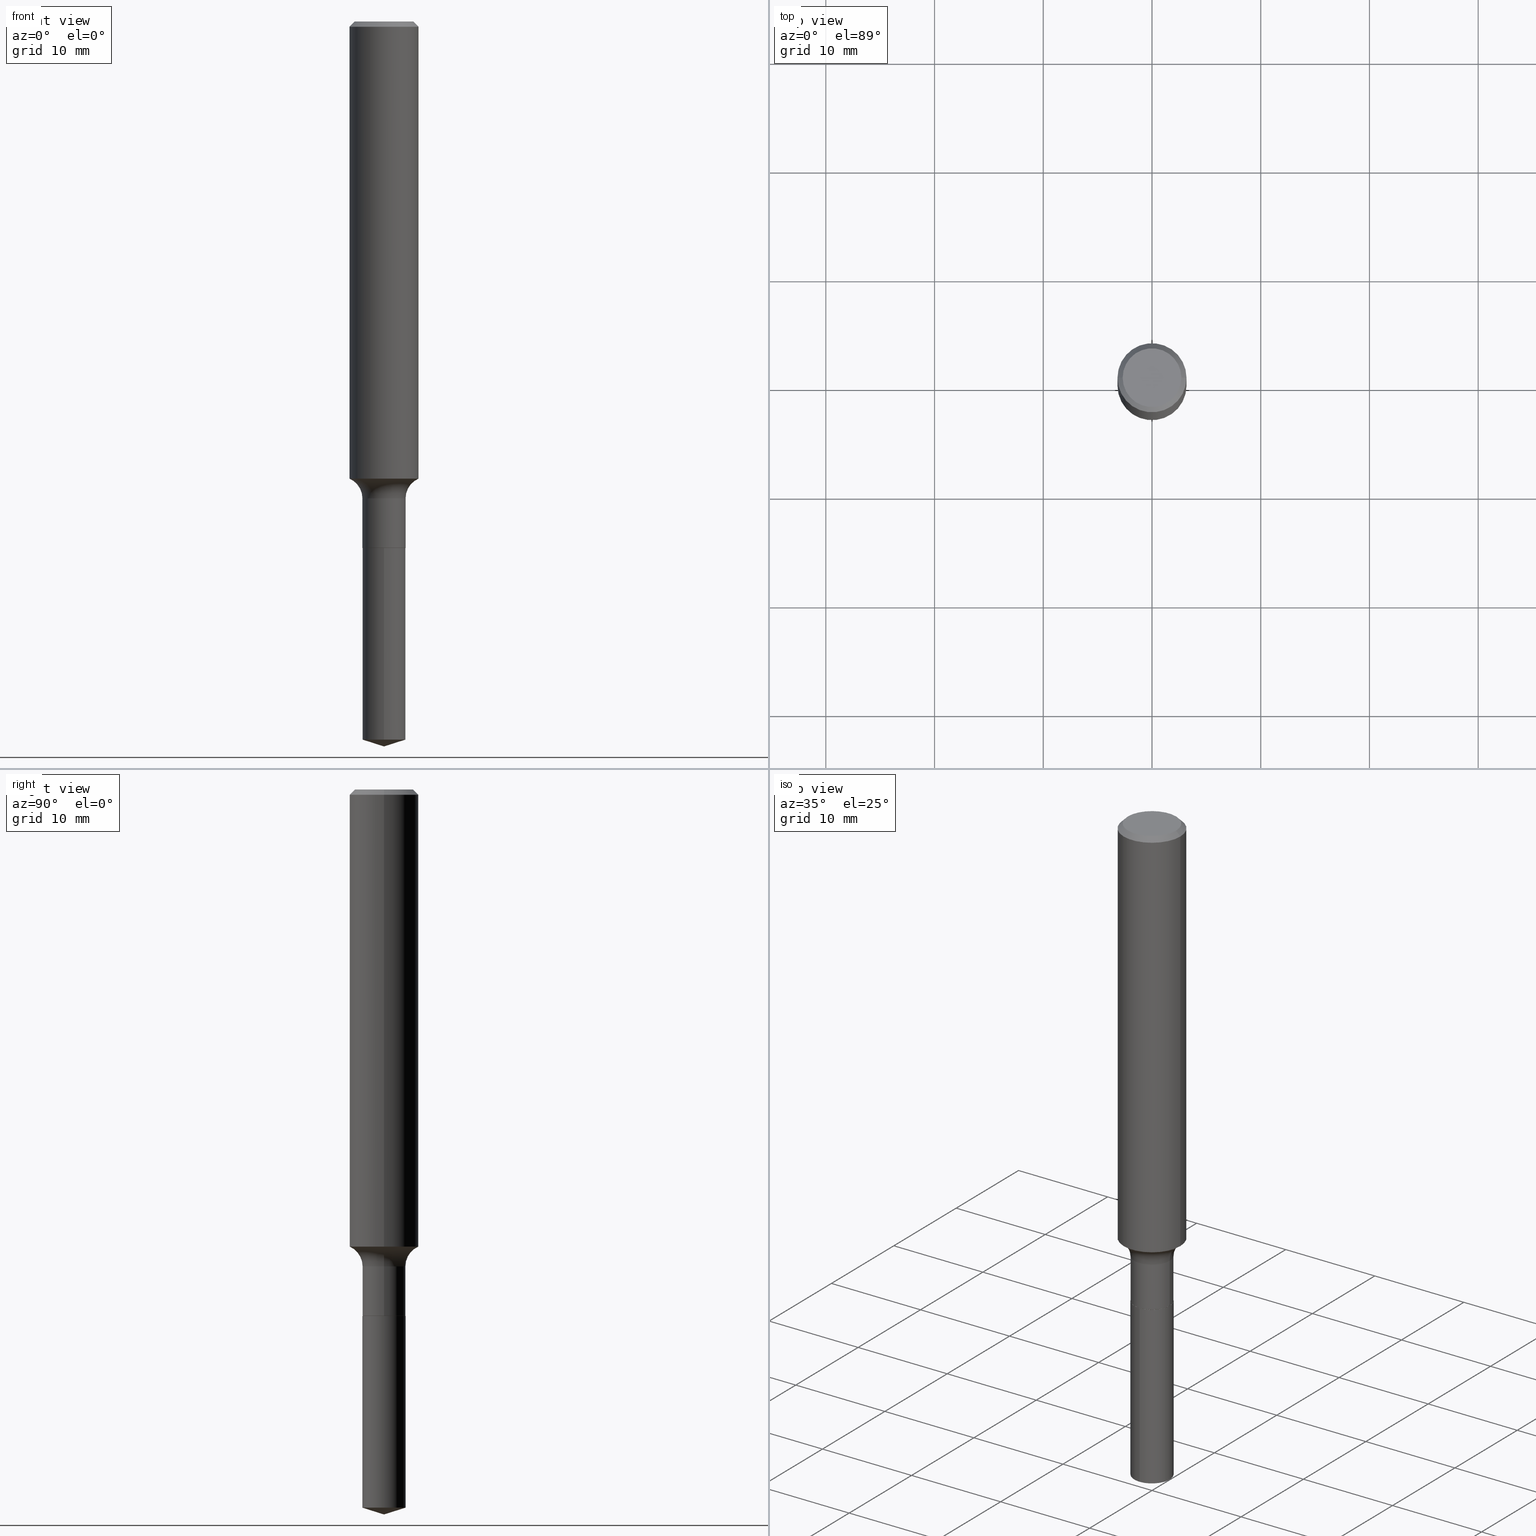
[diagram: canonical four-view strip — front | top / right | iso, engineering-drawing reading convention]
A machine part, canonical four-view strip (front | top / right | iso — engineering-drawing reading convention). The complete STEP part file that produces these views, byte-faithful:
ISO-10303-21;
HEADER;
FILE_DESCRIPTION (( 'STEP AP203' ),
    '1' );
FILE_NAME ('51334.STEP',
    '2024-04-19T12:48:32',
    ( '' ),
    ( '' ),
    'SwSTEP 2.0',
    'SolidWorks 2023',
    '' );
FILE_SCHEMA (( 'CONFIG_CONTROL_DESIGN' ));
ENDSEC;

DATA;
#1 = EDGE_CURVE ( 'NONE', #280, #10, #103, .T. ) ;
#2 = AXIS2_PLACEMENT_3D ( 'NONE', #140, #301, #440 ) ;
#3 = ORIENTED_EDGE ( 'NONE', *, *, #465, .F. ) ;
#4 = ORIENTED_EDGE ( 'NONE', *, *, #383, .T. ) ;
#5 = DIRECTION ( 'NONE',  ( -2.445468806185136877E-29, 3.491481338843145188E-15, 1.000000000000000000 ) ) ;
#6 = PERSON_AND_ORGANIZATION ( #237, #409 ) ;
#7 = ORIENTED_EDGE ( 'NONE', *, *, #157, .F. ) ;
#8 = EDGE_CURVE ( 'NONE', #174, #177, #281, .T. ) ;
#9 = FACE_OUTER_BOUND ( 'NONE', #391, .T. ) ;
#10 = VERTEX_POINT ( 'NONE', #305 ) ;
#11 = DIRECTION ( 'NONE',  ( 1.000000000000000000, -6.982962677686267499E-15, 4.876176775795936353E-29 ) ) ;
#12 = APPROVAL_PERSON_ORGANIZATION ( #260, #126, #385 ) ;
#13 = PERSON_AND_ORGANIZATION ( #237, #409 ) ;
#14 = EDGE_LOOP ( 'NONE', ( #460, #470, #332, #7 ) ) ;
#15 = CARTESIAN_POINT ( 'NONE',  ( 0.1560999999999999333, -7.118432153633400631E-15, -1.726600000000000135 ) ) ;
#16 = ADVANCED_FACE ( 'NONE', ( #137 ), #298, .F. ) ;
#17 = COORDINATED_UNIVERSAL_TIME_OFFSET ( 5, 0, .BEHIND. ) ;
#18 = DIRECTION ( 'NONE',  ( 1.000000000000000000, -6.982962677686266711E-15, 0.000000000000000000 ) ) ;
#19 = ORIENTED_EDGE ( 'NONE', *, *, #490, .F. ) ;
#20 = CARTESIAN_POINT ( 'NONE',  ( 0.07809999999999997500, -5.453693851272973378E-16, 3.808294061896625002E-30 ) ) ;
#21 =( NAMED_UNIT ( * ) PLANE_ANGLE_UNIT ( ) SI_UNIT ( $, .RADIAN. ) );
#22 = EDGE_CURVE ( 'NONE', #351, #444, #228, .T. ) ;
#23 = ORIENTED_EDGE ( 'NONE', *, *, #157, .T. ) ;
#24 = CARTESIAN_POINT ( 'NONE',  ( 4.661552638350107806E-29, -6.655461728102803685E-15, -1.906200000000000117 ) ) ;
#25 = CIRCLE ( 'NONE', #492, 0.1250000000000001943 ) ;
#26 = VERTEX_POINT ( 'NONE', #454 ) ;
#27 = DIRECTION ( 'NONE',  ( -2.445468806185136597E-29, 3.491481338843145583E-15, 1.000000000000000000 ) ) ;
#28 = CARTESIAN_POINT ( 'NONE',  ( 6.359084130436223766E-29, -9.079236141651479808E-15, -2.600375164588550891 ) ) ;
#29 = ADVANCED_FACE ( 'NONE', ( #450 ), #276, .T. ) ;
#30 = DIRECTION ( 'NONE',  ( -6.982962677686266711E-15, -1.000000000000000000, 3.500519750498777402E-15 ) ) ;
#31 = DIRECTION ( 'NONE',  ( 1.000000000000000000, -6.982962677686265922E-15, 4.883557194083112901E-29 ) ) ;
#32 = AXIS2_PLACEMENT_3D ( 'NONE', #476, #144, #225 ) ;
#33 = LINE ( 'NONE', #313, #341 ) ;
#34 = CARTESIAN_POINT ( 'NONE',  ( 6.419158152059804819E-29, -9.165421294402506009E-15, -2.625000000000000000 ) ) ;
#35 = CARTESIAN_POINT ( 'NONE',  ( -1.591006383764329968E-46, 2.271535455632767580E-32, 6.505936120470314915E-18 ) ) ;
#36 = CARTESIAN_POINT ( 'NONE',  ( 6.419447452517559258E-29, -9.165010600977595179E-15, -2.625000000000000000 ) ) ;
#37 = LOCAL_TIME ( 8, 48, 32.00000000000000000, #293 ) ;
#38 = ORIENTED_EDGE ( 'NONE', *, *, #309, .F. ) ;
#39 = VERTEX_POINT ( 'NONE', #267 ) ;
#40 = EDGE_CURVE ( 'NONE', #26, #177, #456, .T. ) ;
#41 = ORIENTED_EDGE ( 'NONE', *, *, #61, .F. ) ;
#42 = EDGE_CURVE ( 'NONE', #220, #174, #33, .T. ) ;
#43 = VECTOR ( 'NONE', #273, 39.37007874015748143 ) ;
#44 = CC_DESIGN_SECURITY_CLASSIFICATION ( #119, ( #277 ) ) ;
#45 = ORIENTED_EDGE ( 'NONE', *, *, #262, .T. ) ;
#46 = CARTESIAN_POINT ( 'NONE',  ( 5.549338766287017680E-16, 0.07809999999999334142, -1.906200000000000339 ) ) ;
#47 = EDGE_CURVE ( 'NONE', #217, #50, #266, .T. ) ;
#48 = CARTESIAN_POINT ( 'NONE',  ( -0.1250000000000003053, -4.890461520389817899E-15, -1.655068258793735314 ) ) ;
#49 = PERSON_AND_ORGANIZATION_ROLE ( 'classification_officer' ) ;
#50 = VERTEX_POINT ( 'NONE', #112 ) ;
#51 = PERSON_AND_ORGANIZATION ( #237, #409 ) ;
#52 = VECTOR ( 'NONE', #101, 39.37007874015748143 ) ;
#53 = EDGE_LOOP ( 'NONE', ( #45, #427 ) ) ;
#54 = AXIS2_PLACEMENT_3D ( 'NONE', #368, #212, #18 ) ;
#55 = DIRECTION ( 'NONE',  ( -1.000000000000000000, 6.982962677686266711E-15, 0.000000000000000000 ) ) ;
#56 = PERSON_AND_ORGANIZATION_ROLE ( 'design_owner' ) ;
#57 = DESIGN_CONTEXT ( 'detailed design', #489, 'design' ) ;
#58 = DIRECTION ( 'NONE',  ( 1.000000000000000000, -6.982962677686266711E-15, 4.876176775795935232E-29 ) ) ;
#59 = ORIENTED_EDGE ( 'NONE', *, *, #61, .T. ) ;
#60 = DIRECTION ( 'NONE',  ( 1.000000000000000000, -6.982962677686266711E-15, 4.876176775795935232E-29 ) ) ;
#61 = EDGE_CURVE ( 'NONE', #280, #444, #362, .T. ) ;
#62 = MECHANICAL_CONTEXT ( 'NONE', #158, 'mechanical' ) ;
#63 = VERTEX_POINT ( 'NONE', #412 ) ;
#64 = CARTESIAN_POINT ( 'NONE',  ( 0.1250000000000001110, -8.728703347107841277E-16, 6.095220969744924646E-30 ) ) ;
#65 = CALENDAR_DATE ( 2024, 19, 4 ) ;
#66 = ADVANCED_FACE ( 'NONE', ( #114 ), #457, .T. ) ;
#67 = ORIENTED_EDGE ( 'NONE', *, *, #189, .T. ) ;
#68 = DIRECTION ( 'NONE',  ( -2.445468806185136597E-29, 3.491481338843145583E-15, 1.000000000000000000 ) ) ;
#69 = AXIS2_PLACEMENT_3D ( 'NONE', #379, #270, #30 ) ;
#70 = AXIS2_PLACEMENT_3D ( 'NONE', #308, #68, #107 ) ;
#71 = LINE ( 'NONE', #339, #43 ) ;
#72 = DIRECTION ( 'NONE',  ( 1.000000000000000000, -6.982962677686267499E-15, 0.000000000000000000 ) ) ;
#73 = DIRECTION ( 'NONE',  ( -2.445468806185136597E-29, 3.491481338843145583E-15, 1.000000000000000000 ) ) ;
#74 = DIRECTION ( 'NONE',  ( 1.000000000000000000, -6.982962677686267499E-15, 0.000000000000000000 ) ) ;
#75 = DIRECTION ( 'NONE',  ( 1.000000000000000000, -6.982962677686260400E-15, 0.000000000000000000 ) ) ;
#76 = DIRECTION ( 'NONE',  ( -1.000000000000000000, 6.982962677686266711E-15, 0.000000000000000000 ) ) ;
#77 = TOROIDAL_SURFACE ( 'NONE', #472, 0.1560999999999999333, 0.07800000000000002764 ) ;
#78 = CIRCLE ( 'NONE', #245, 0.07810000000000000275 ) ;
#79 = CYLINDRICAL_SURFACE ( 'NONE', #100, 0.07809999999999997500 ) ;
#80 = DATE_AND_TIME ( #417, #312 ) ;
#81 = EDGE_CURVE ( 'NONE', #444, #171, #71, .T. ) ;
#82 = CYLINDRICAL_SURFACE ( 'NONE', #149, 0.07810000000000000275 ) ;
#83 = CC_DESIGN_PERSON_AND_ORGANIZATION_ASSIGNMENT ( #443, #304, ( #277 ) ) ;
#84 = VECTOR ( 'NONE', #120, 39.37007874015748143 ) ;
#85 = ORIENTED_EDGE ( 'NONE', *, *, #22, .F. ) ;
#86 = ORIENTED_EDGE ( 'NONE', *, *, #452, .T. ) ;
#87 = ORIENTED_EDGE ( 'NONE', *, *, #425, .F. ) ;
#88 = ADVANCED_FACE ( 'NONE', ( #410 ), #184, .F. ) ;
#89 = DIRECTION ( 'NONE',  ( 7.105427357601001859E-15, 1.000000000000000000, -3.491481338843145583E-15 ) ) ;
#90 = CIRCLE ( 'NONE', #386, 0.1250000000000001943 ) ;
#91 = ORIENTED_EDGE ( 'NONE', *, *, #490, .T. ) ;
#92 = DIRECTION ( 'NONE',  ( -6.982962677686265133E-15, -1.000000000000000000, 3.497884755011860410E-15 ) ) ;
#93 = CC_DESIGN_PERSON_AND_ORGANIZATION_ASSIGNMENT ( #94, #49, ( #119 ) ) ;
#94 = PERSON_AND_ORGANIZATION ( #237, #409 ) ;
#95 = ORIENTED_EDGE ( 'NONE', *, *, #482, .F. ) ;
#96 = CARTESIAN_POINT ( 'NONE',  ( 4.660329903947015004E-29, -6.653715987433382970E-15, -1.905700000000000172 ) ) ;
#97 = ORIENTED_EDGE ( 'NONE', *, *, #475, .F. ) ;
#98 = DIRECTION ( 'NONE',  ( 2.438088387897960049E-29, -3.491481338843145188E-15, -1.000000000000000000 ) ) ;
#99 = CARTESIAN_POINT ( 'NONE',  ( 0.000000000000000000, 0.000000000000000000, 0.000000000000000000 ) ) ;
#100 = AXIS2_PLACEMENT_3D ( 'NONE', #411, #73, #234 ) ;
#101 = DIRECTION ( 'NONE',  ( -6.659769872151619467E-15, -0.9537169507482249342, 0.3007057995042795584 ) ) ;
#102 = DATE_TIME_ROLE ( 'creation_date' ) ;
#103 = LINE ( 'NONE', #467, #287 ) ;
#104 = CARTESIAN_POINT ( 'NONE',  ( -1.591006383764329968E-46, 2.271535455632767580E-32, 6.505936120470314915E-18 ) ) ;
#105 = VERTEX_POINT ( 'NONE', #150 ) ;
#106 = DIRECTION ( 'NONE',  ( -6.982962677686265133E-15, -1.000000000000000000, 3.497884755011860410E-15 ) ) ;
#107 = DIRECTION ( 'NONE',  ( 1.000000000000000000, -6.982962677686269077E-15, 0.000000000000000000 ) ) ;
#108 = LINE ( 'NONE', #223, #195 ) ;
#109 = CIRCLE ( 'NONE', #185, 0.1250000000000000000 ) ;
#110 = TOROIDAL_SURFACE ( 'NONE', #464, 0.1560999999999999333, 0.07800000000000002764 ) ;
#111 = DATE_AND_TIME ( #479, #458 ) ;
#112 = CARTESIAN_POINT ( 'NONE',  ( -0.07809999999999997500, -5.786119956911341584E-15, -1.726600000000000135 ) ) ;
#113 = LINE ( 'NONE', #187, #481 ) ;
#114 = FACE_OUTER_BOUND ( 'NONE', #365, .T. ) ;
#115 = CARTESIAN_POINT ( 'NONE',  ( -0.1250000000000000000, 8.074050596074738982E-16, -0.01875000000000013461 ) ) ;
#116 = CARTESIAN_POINT ( 'NONE',  ( 4.661552638350107806E-29, -6.655461728102803685E-15, -1.906200000000000117 ) ) ;
#117 = ADVANCED_FACE ( 'NONE', ( #415 ), #79, .T. ) ;
#118 = AXIS2_PLACEMENT_3D ( 'NONE', #96, #324, #251 ) ;
#119 = SECURITY_CLASSIFICATION ( '', '', #170 ) ;
#120 = DIRECTION ( 'NONE',  ( 0.7071067811865450192, -7.319954787623246579E-15, -0.7071067811865500152 ) ) ;
#121 = EDGE_LOOP ( 'NONE', ( #59, #372, #19, #294 ) ) ;
#122 = ORIENTED_EDGE ( 'NONE', *, *, #47, .T. ) ;
#123 = AXIS2_PLACEMENT_3D ( 'NONE', #24, #180, #265 ) ;
#124 = CC_DESIGN_DATE_AND_TIME_ASSIGNMENT ( #335, #102, ( #317 ) ) ;
#125 = ORIENTED_EDGE ( 'NONE', *, *, #387, .F. ) ;
#126 = APPROVAL ( #363, 'UNSPECIFIED' ) ;
#127 = PRODUCT_DEFINITION_SHAPE ( 'NONE', 'NONE',  #317 ) ;
#128 = PERSON_AND_ORGANIZATION ( #237, #409 ) ;
#129 = CONICAL_SURFACE ( 'NONE', #375, 0.1250000000000000000, 0.7853981633974447263 ) ;
#130 = ADVANCED_BREP_SHAPE_REPRESENTATION ( '51334', ( #355, #198, #400 ), #342 ) ;
#131 = VECTOR ( 'NONE', #373, 39.37007874015748143 ) ;
#132 = ORIENTED_EDGE ( 'NONE', *, *, #200, .F. ) ;
#133 = DIRECTION ( 'NONE',  ( -2.445393581737068689E-29, 3.491589064534288642E-15, 1.000000000000000000 ) ) ;
#134 = ADVANCED_FACE ( 'NONE', ( #343 ), #347, .T. ) ;
#135 = CARTESIAN_POINT ( 'NONE',  ( -0.1250000000000000000, -2.033874187896500512E-15, -0.01875000000000013461 ) ) ;
#136 = EDGE_CURVE ( 'NONE', #26, #258, #207, .T. ) ;
#137 = FACE_OUTER_BOUND ( 'NONE', #213, .T. ) ;
#138 = FACE_OUTER_BOUND ( 'NONE', #327, .T. ) ;
#139 = VECTOR ( 'NONE', #346, 39.37007874015748854 ) ;
#140 = CARTESIAN_POINT ( 'NONE',  ( 4.661552638350107806E-29, -6.655461728102803685E-15, -1.906200000000000117 ) ) ;
#141 = FACE_OUTER_BOUND ( 'NONE', #14, .T. ) ;
#142 = APPLICATION_PROTOCOL_DEFINITION ( 'international standard', 'config_control_design', 1994, #489 ) ;
#143 = EDGE_LOOP ( 'NONE', ( #85, #196, #97 ) ) ;
#144 = DIRECTION ( 'NONE',  ( -2.445468806185136597E-29, 3.491481338843145583E-15, 1.000000000000000000 ) ) ;
#145 = ADVANCED_FACE ( 'NONE', ( #154 ), #82, .T. ) ;
#146 = CARTESIAN_POINT ( 'NONE',  ( 0.07760000000000000231, -7.197339631891257326E-15, -1.906200000000000117 ) ) ;
#147 = PRODUCT_RELATED_PRODUCT_CATEGORY ( 'detail', '', ( #160 ) ) ;
#148 = DIRECTION ( 'NONE',  ( -2.445393581737068689E-29, 3.491589064534288642E-15, 1.000000000000000000 ) ) ;
#149 = AXIS2_PLACEMENT_3D ( 'NONE', #477, #148, #333 ) ;
#150 = CARTESIAN_POINT ( 'NONE',  ( 0.07810000000000000275, -7.199085372560681196E-15, -1.905700000000000172 ) ) ;
#151 = EDGE_CURVE ( 'NONE', #337, #39, #255, .T. ) ;
#152 = DIRECTION ( 'NONE',  ( -2.445468806185136877E-29, 3.491481338843145188E-15, 1.000000000000000000 ) ) ;
#153 = DIRECTION ( 'NONE',  ( 2.445468806185136597E-29, -3.491481338843145583E-15, -1.000000000000000000 ) ) ;
#154 = FACE_OUTER_BOUND ( 'NONE', #121, .T. ) ;
#155 = AXIS2_PLACEMENT_3D ( 'NONE', #381, #315, #75 ) ;
#156 = CIRCLE ( 'NONE', #282, 0.07800000000000002764 ) ;
#157 = EDGE_CURVE ( 'NONE', #105, #217, #243, .T. ) ;
#158 = APPLICATION_CONTEXT ( 'configuration controlled 3d designs of mechanical parts and assemblies' ) ;
#159 = ORIENTED_EDGE ( 'NONE', *, *, #331, .T. ) ;
#160 = PRODUCT ( '51334', '51334', '', ( #62 ) ) ;
#161 = AXIS2_PLACEMENT_3D ( 'NONE', #28, #307, #418 ) ;
#162 = CIRCLE ( 'NONE', #123, 0.07810000000000000275 ) ;
#163 = ORIENTED_EDGE ( 'NONE', *, *, #302, .F. ) ;
#164 = ADVANCED_FACE ( 'NONE', ( #141 ), #203, .T. ) ;
#165 = LINE ( 'NONE', #466, #52 ) ;
#166 = CLOSED_SHELL ( 'NONE', ( #145, #66, #134, #169, #16 ) ) ;
#167 = CC_DESIGN_APPROVAL ( #126, ( #119 ) ) ;
#168 = DIRECTION ( 'NONE',  ( -2.445468806185136597E-29, 3.491481338843145583E-15, 1.000000000000000000 ) ) ;
#169 = ADVANCED_FACE ( 'NONE', ( #206 ), #286, .T. ) ;
#170 = SECURITY_CLASSIFICATION_LEVEL ( 'unclassified' ) ;
#171 = VERTEX_POINT ( 'NONE', #46 ) ;
#172 = CARTESIAN_POINT ( 'NONE',  ( 0.1250000000000000000, -9.383356098140928781E-16, -0.01875000000000013461 ) ) ;
#173 = DATE_AND_TIME ( #65, #389 ) ;
#174 = VERTEX_POINT ( 'NONE', #135 ) ;
#175 = APPLICATION_PROTOCOL_DEFINITION ( 'international standard', 'config_control_design', 1994, #158 ) ;
#176 = EDGE_CURVE ( 'NONE', #351, #280, #165, .T. ) ;
#177 = VERTEX_POINT ( 'NONE', #172 ) ;
#178 = CIRCLE ( 'NONE', #238, 0.1062499999999999972 ) ;
#179 = CARTESIAN_POINT ( 'NONE',  ( 6.359084130436223766E-29, -9.079236141651479808E-15, -2.600375164588550891 ) ) ;
#180 = DIRECTION ( 'NONE',  ( -2.445393581737068689E-29, 3.491589064534288642E-15, 1.000000000000000000 ) ) ;
#181 = ORIENTED_EDGE ( 'NONE', *, *, #151, .T. ) ;
#182 =( LENGTH_UNIT ( ) NAMED_UNIT ( * ) SI_UNIT ( $, .METRE. ) );
#183 = DIRECTION ( 'NONE',  ( -2.445393581737068689E-29, 3.491589064534288642E-15, 1.000000000000000000 ) ) ;
#184 = PLANE ( 'NONE',  #310 ) ;
#185 = AXIS2_PLACEMENT_3D ( 'NONE', #435, #428, #441 ) ;
#186 = DIRECTION ( 'NONE',  ( -2.445393581737068689E-29, 3.491589064534288642E-15, 1.000000000000000000 ) ) ;
#187 = CARTESIAN_POINT ( 'NONE',  ( -0.07760000000000000231, -6.104080565152965924E-15, -1.906200000000000117 ) ) ;
#188 = CC_DESIGN_APPROVAL ( #354, ( #317 ) ) ;
#189 = EDGE_CURVE ( 'NONE', #39, #337, #244, .T. ) ;
#190 = DIRECTION ( 'NONE',  ( -2.445468806185136597E-29, 3.491481338843145583E-15, 1.000000000000000000 ) ) ;
#191 = CARTESIAN_POINT ( 'NONE',  ( 4.047417798987228218E-29, -5.778639940089945498E-15, -1.655068258793735314 ) ) ;
#192 = DIRECTION ( 'NONE',  ( -2.445393581737068689E-29, 3.491589064534288642E-15, 1.000000000000000000 ) ) ;
#193 = ADVANCED_FACE ( 'NONE', ( #403 ), #393, .T. ) ;
#194 = AXIS2_PLACEMENT_3D ( 'NONE', #15, #468, #299 ) ;
#195 = VECTOR ( 'NONE', #274, 39.37007874015748143 ) ;
#196 = ORIENTED_EDGE ( 'NONE', *, *, #176, .T. ) ;
#197 = EDGE_LOOP ( 'NONE', ( #181, #376, #3, #95 ) ) ;
#198 = MANIFOLD_SOLID_BREP ( 'Body-Move/Copy2[2]', #420 ) ;
#199 = CONICAL_SURFACE ( 'NONE', #268, 0.1250000000000000000, 0.7853981633974447263 ) ;
#200 = EDGE_CURVE ( 'NONE', #177, #174, #109, .T. ) ;
#201 = ORIENTED_EDGE ( 'NONE', *, *, #176, .F. ) ;
#202 = EDGE_LOOP ( 'NONE', ( #215, #388, #132, #163 ) ) ;
#203 = CYLINDRICAL_SURFACE ( 'NONE', #316, 0.07809999999999997500 ) ;
#204 = ORIENTED_EDGE ( 'NONE', *, *, #249, .T. ) ;
#205 = ADVANCED_FACE ( 'NONE', ( #248 ), #214, .F. ) ;
#206 = FACE_OUTER_BOUND ( 'NONE', #434, .T. ) ;
#207 = CIRCLE ( 'NONE', #219, 0.1062499999999999972 ) ;
#208 = PERSON_AND_ORGANIZATION_ROLE ( 'creator' ) ;
#209 = VECTOR ( 'NONE', #478, 39.37007874015748143 ) ;
#210 = EDGE_LOOP ( 'NONE', ( #318, #279 ) ) ;
#211 = APPROVAL_STATUS ( 'not_yet_approved' ) ;
#212 = DIRECTION ( 'NONE',  ( -2.445468806185136597E-29, 3.491481338843145583E-15, 1.000000000000000000 ) ) ;
#213 = EDGE_LOOP ( 'NONE', ( #91, #264 ) ) ;
#214 = PLANE ( 'NONE',  #229 ) ;
#215 = ORIENTED_EDGE ( 'NONE', *, *, #425, .T. ) ;
#216 = DIRECTION ( 'NONE',  ( -6.982962677686265133E-15, -1.000000000000000000, 0.000000000000000000 ) ) ;
#217 = VERTEX_POINT ( 'NONE', #254 ) ;
#218 = APPROVAL_STATUS ( 'not_yet_approved' ) ;
#219 = AXIS2_PLACEMENT_3D ( 'NONE', #35, #226, #488 ) ;
#220 = VERTEX_POINT ( 'NONE', #48 ) ;
#221 = AXIS2_PLACEMENT_3D ( 'NONE', #401, #257, #58 ) ;
#222 = LINE ( 'NONE', #483, #131 ) ;
#223 = CARTESIAN_POINT ( 'NONE',  ( -0.07809999999999997500, 5.549338766286380675E-16, -3.841688305489080574E-30 ) ) ;
#224 = DIRECTION ( 'NONE',  ( -6.982962677686266711E-15, -1.000000000000000000, 3.500519750498777402E-15 ) ) ;
#225 = DIRECTION ( 'NONE',  ( 1.000000000000000000, -6.982962677686260400E-15, 0.000000000000000000 ) ) ;
#226 = DIRECTION ( 'NONE',  ( -2.445468806185136597E-29, 3.491481338843145583E-15, 1.000000000000000000 ) ) ;
#227 = ADVANCED_FACE ( 'NONE', ( #9 ), #77, .F. ) ;
#228 = LINE ( 'NONE', #36, #139 ) ;
#229 = AXIS2_PLACEMENT_3D ( 'NONE', #395, #98, #358 ) ;
#230 = DIRECTION ( 'NONE',  ( -2.445468806185136597E-29, 3.491481338843145583E-15, 1.000000000000000000 ) ) ;
#231 = CIRCLE ( 'NONE', #70, 0.07809999999999997500 ) ;
#232 = EDGE_CURVE ( 'NONE', #63, #105, #334, .T. ) ;
#233 = COORDINATED_UNIVERSAL_TIME_OFFSET ( 5, 0, .BEHIND. ) ;
#234 = DIRECTION ( 'NONE',  ( 1.000000000000000000, -6.982962677686267499E-15, 4.876176775795936353E-29 ) ) ;
#235 = APPROVAL_DATE_TIME ( #80, #126 ) ;
#236 = ADVANCED_FACE ( 'NONE', ( #138 ), #129, .T. ) ;
#237 = PERSON ( 'UNSPECIFIED', 'UNSPECIFIED', 'UNSPECIFIED', ('UNSPECIFIED'), ('UNSPECIFIED'), ('UNSPECIFIED') ) ;
#238 = AXIS2_PLACEMENT_3D ( 'NONE', #104, #230, #380 ) ;
#239 = EDGE_LOOP ( 'NONE', ( #125, #430, #23, #422 ) ) ;
#240 = ORIENTED_EDGE ( 'NONE', *, *, #1, .T. ) ;
#241 = EDGE_CURVE ( 'NONE', #423, #217, #408, .T. ) ;
#242 = EDGE_LOOP ( 'NONE', ( #406, #323, #285, #419 ) ) ;
#243 = LINE ( 'NONE', #20, #325 ) ;
#244 = CIRCLE ( 'NONE', #300, 0.07760000000000000231 ) ;
#245 = AXIS2_PLACEMENT_3D ( 'NONE', #445, #183, #106 ) ;
#246 = FACE_OUTER_BOUND ( 'NONE', #462, .T. ) ;
#247 = ORIENTED_EDGE ( 'NONE', *, *, #433, .F. ) ;
#248 = FACE_OUTER_BOUND ( 'NONE', #53, .T. ) ;
#249 = EDGE_CURVE ( 'NONE', #220, #423, #90, .T. ) ;
#250 = ORIENTED_EDGE ( 'NONE', *, *, #452, .F. ) ;
#251 = DIRECTION ( 'NONE',  ( 1.000000000000000000, -6.982962677686266711E-15, 0.000000000000000000 ) ) ;
#252 = DIRECTION ( 'NONE',  ( 0.000000000000000000, 0.000000000000000000, 1.000000000000000000 ) ) ;
#253 = ORIENTED_EDGE ( 'NONE', *, *, #262, .F. ) ;
#254 = CARTESIAN_POINT ( 'NONE',  ( 0.07809999999999997500, -6.573761064773872585E-15, -1.726600000000000135 ) ) ;
#255 = CIRCLE ( 'NONE', #480, 0.07760000000000000231 ) ;
#256 = UNCERTAINTY_MEASURE_WITH_UNIT (LENGTH_MEASURE( 1.000000000000000082E-05 ), #330, 'distance_accuracy_value', 'NONE');
#257 = DIRECTION ( 'NONE',  ( -2.445468806185136597E-29, 3.491481338843145583E-15, 1.000000000000000000 ) ) ;
#258 = VERTEX_POINT ( 'NONE', #271 ) ;
#259 = DIRECTION ( 'NONE',  ( 1.000000000000000000, -6.982962677686260400E-15, 0.000000000000000000 ) ) ;
#260 = PERSON_AND_ORGANIZATION ( #237, #409 ) ;
#261 = EDGE_LOOP ( 'NONE', ( #284, #86, #4, #291 ) ) ;
#262 = EDGE_CURVE ( 'NONE', #258, #26, #178, .T. ) ;
#263 = CALENDAR_DATE ( 2024, 19, 4 ) ;
#264 = ORIENTED_EDGE ( 'NONE', *, *, #433, .T. ) ;
#265 = DIRECTION ( 'NONE',  ( -6.982962677686265133E-15, -1.000000000000000000, 3.497884755011860410E-15 ) ) ;
#266 = CIRCLE ( 'NONE', #361, 0.07809999999999997500 ) ;
#267 = CARTESIAN_POINT ( 'NONE',  ( -0.07760000000000000231, -6.101431337978854723E-15, -1.906200000000000117 ) ) ;
#268 = AXIS2_PLACEMENT_3D ( 'NONE', #413, #153, #76 ) ;
#269 = FACE_OUTER_BOUND ( 'NONE', #242, .T. ) ;
#270 = DIRECTION ( 'NONE',  ( -2.445393581737068689E-29, 3.491589064534288642E-15, 1.000000000000000000 ) ) ;
#271 = CARTESIAN_POINT ( 'NONE',  ( -0.1062499999999999972, 7.746724220558198188E-16, 6.505936120465012444E-18 ) ) ;
#272 = DATE_TIME_ROLE ( 'classification_date' ) ;
#273 = DIRECTION ( 'NONE',  ( -2.445393581737068689E-29, 3.491589064534288248E-15, 1.000000000000000000 ) ) ;
#274 = DIRECTION ( 'NONE',  ( -2.445468806185136877E-29, 3.491481338843145188E-15, 1.000000000000000000 ) ) ;
#275 = DIRECTION ( 'NONE',  ( 1.000000000000000000, -6.982962677686265922E-15, 4.876176775795935793E-29 ) ) ;
#276 = CONICAL_SURFACE ( 'NONE', #155, 0.07760000000000000231, 0.7853981633975507526 ) ;
#277 = PRODUCT_DEFINITION_FORMATION_WITH_SPECIFIED_SOURCE ( 'ANY', '', #160, .NOT_KNOWN. ) ;
#278 = DIRECTION ( 'NONE',  ( -2.438088387897960049E-29, 3.491481338843145188E-15, 1.000000000000000000 ) ) ;
#279 = ORIENTED_EDGE ( 'NONE', *, *, #189, .F. ) ;
#280 = VERTEX_POINT ( 'NONE', #451 ) ;
#281 = CIRCLE ( 'NONE', #392, 0.1250000000000000000 ) ;
#282 = AXIS2_PLACEMENT_3D ( 'NONE', #378, #89, #297 ) ;
#283 = ADVANCED_FACE ( 'NONE', ( #306 ), #110, .F. ) ;
#284 = ORIENTED_EDGE ( 'NONE', *, *, #249, .F. ) ;
#285 = ORIENTED_EDGE ( 'NONE', *, *, #200, .T. ) ;
#286 = CYLINDRICAL_SURFACE ( 'NONE', #437, 0.07810000000000000275 ) ;
#287 = VECTOR ( 'NONE', #474, 39.37007874015748143 ) ;
#288 = CIRCLE ( 'NONE', #54, 0.07810000000000000275 ) ;
#289 = COORDINATED_UNIVERSAL_TIME_OFFSET ( 5, 0, .BEHIND. ) ;
#290 = CYLINDRICAL_SURFACE ( 'NONE', #221, 0.1250000000000001110 ) ;
#291 = ORIENTED_EDGE ( 'NONE', *, *, #241, .F. ) ;
#292 = DIRECTION ( 'NONE',  ( -2.445468806185136597E-29, 3.491481338843145583E-15, 1.000000000000000000 ) ) ;
#293 = COORDINATED_UNIVERSAL_TIME_OFFSET ( 5, 0, .BEHIND. ) ;
#294 = ORIENTED_EDGE ( 'NONE', *, *, #1, .F. ) ;
#295 = CARTESIAN_POINT ( 'NONE',  ( 4.661552638350107806E-29, -6.655461728102803685E-15, -1.906200000000000117 ) ) ;
#296 = APPROVAL_DATE_TIME ( #173, #485 ) ;
#297 = DIRECTION ( 'NONE',  ( -1.000000000000000000, 7.105427357601001859E-15, 0.000000000000000000 ) ) ;
#298 = PLANE ( 'NONE',  #2 ) ;
#299 = DIRECTION ( 'NONE',  ( 1.000000000000000000, -6.982962677686268288E-15, 0.000000000000000000 ) ) ;
#300 = AXIS2_PLACEMENT_3D ( 'NONE', #295, #471, #259 ) ;
#301 = DIRECTION ( 'NONE',  ( 2.445393581737068689E-29, -3.491589064534288248E-15, -1.000000000000000000 ) ) ;
#302 = EDGE_CURVE ( 'NONE', #423, #177, #340, .T. ) ;
#303 = DIRECTION ( 'NONE',  ( -2.445468806185136597E-29, 3.491481338843145583E-15, 1.000000000000000000 ) ) ;
#304 = PERSON_AND_ORGANIZATION_ROLE ( 'creator' ) ;
#305 = CARTESIAN_POINT ( 'NONE',  ( -5.453693851272506964E-16, -0.07810000000000665021, -1.906199999999999672 ) ) ;
#306 = FACE_OUTER_BOUND ( 'NONE', #261, .T. ) ;
#307 = DIRECTION ( 'NONE',  ( -2.445393581737068689E-29, 3.491589064534288642E-15, 1.000000000000000000 ) ) ;
#308 = CARTESIAN_POINT ( 'NONE',  ( 4.222346440759256809E-29, -6.028391679646575149E-15, -1.726600000000000135 ) ) ;
#309 = EDGE_CURVE ( 'NONE', #39, #63, #113, .T. ) ;
#310 = AXIS2_PLACEMENT_3D ( 'NONE', #116, #278, #275 ) ;
#311 = CARTESIAN_POINT ( 'NONE',  ( 4.222346440759256809E-29, -6.028391679646575149E-15, -1.726600000000000135 ) ) ;
#312 = LOCAL_TIME ( 8, 48, 32.00000000000000000, #491 ) ;
#313 = CARTESIAN_POINT ( 'NONE',  ( -0.1250000000000001110, 8.881784197001260212E-16, -6.148668862818637832E-30 ) ) ;
#314 = CARTESIAN_POINT ( 'NONE',  ( 4.222346440759256809E-29, -6.028391679646575149E-15, -1.726600000000000135 ) ) ;
#315 = DIRECTION ( 'NONE',  ( -2.445468806185136597E-29, 3.491481338843145583E-15, 1.000000000000000000 ) ) ;
#316 = AXIS2_PLACEMENT_3D ( 'NONE', #461, #370, #11 ) ;
#317 = PRODUCT_DEFINITION ( 'UNKNOWN', '', #277, #57 ) ;
#318 = ORIENTED_EDGE ( 'NONE', *, *, #151, .F. ) ;
#319 = ORIENTED_EDGE ( 'NONE', *, *, #232, .F. ) ;
#320 = CC_DESIGN_PERSON_AND_ORGANIZATION_ASSIGNMENT ( #51, #208, ( #317 ) ) ;
#321 = DIRECTION ( 'NONE',  ( -2.445468806185136597E-29, 3.491481338843145583E-15, 1.000000000000000000 ) ) ;
#322 = APPROVAL_ROLE ( '' ) ;
#323 = ORIENTED_EDGE ( 'NONE', *, *, #40, .T. ) ;
#324 = DIRECTION ( 'NONE',  ( -2.445468806185136597E-29, 3.491481338843145583E-15, 1.000000000000000000 ) ) ;
#325 = VECTOR ( 'NONE', #5, 39.37007874015748143 ) ;
#326 = LOCAL_TIME ( 8, 48, 32.00000000000000000, #17 ) ;
#327 = EDGE_LOOP ( 'NONE', ( #436, #253, #159, #349 ) ) ;
#328 = CARTESIAN_POINT ( 'NONE',  ( 4.661552638350107806E-29, -6.655461728102803685E-15, -1.906200000000000117 ) ) ;
#329 = DIRECTION ( 'NONE',  ( 2.445468806185136597E-29, -3.491481338843145583E-15, -1.000000000000000000 ) ) ;
#330 =( CONVERSION_BASED_UNIT ( 'INCH', #350 ) LENGTH_UNIT ( ) NAMED_UNIT ( #426 ) );
#331 = EDGE_CURVE ( 'NONE', #258, #174, #453, .T. ) ;
#332 = ORIENTED_EDGE ( 'NONE', *, *, #47, .F. ) ;
#333 = DIRECTION ( 'NONE',  ( -6.982962677686265133E-15, -1.000000000000000000, 3.497884755011860410E-15 ) ) ;
#334 = CIRCLE ( 'NONE', #118, 0.07810000000000000275 ) ;
#335 = DATE_AND_TIME ( #263, #326 ) ;
#336 = CC_DESIGN_DATE_AND_TIME_ASSIGNMENT ( #111, #272, ( #119 ) ) ;
#337 = VERTEX_POINT ( 'NONE', #146 ) ;
#338 = CARTESIAN_POINT ( 'NONE',  ( 5.549338766287017680E-16, 0.07809999999999091280, -2.600375164588551780 ) ) ;
#339 = CARTESIAN_POINT ( 'NONE',  ( 5.549338766286847089E-16, 0.07809999999999334142, -1.906200000000000339 ) ) ;
#340 = LINE ( 'NONE', #64, #209 ) ;
#341 = VECTOR ( 'NONE', #152, 39.37007874015748143 ) ;
#342 =( GEOMETRIC_REPRESENTATION_CONTEXT ( 3 ) GLOBAL_UNCERTAINTY_ASSIGNED_CONTEXT ( ( #256 ) ) GLOBAL_UNIT_ASSIGNED_CONTEXT ( ( #330, #21, #429 ) ) REPRESENTATION_CONTEXT ( 'NONE', 'WORKASPACE' ) );
#343 = FACE_OUTER_BOUND ( 'NONE', #143, .T. ) ;
#344 = DIRECTION ( 'NONE',  ( 1.000000000000000000, -6.982962677686269077E-15, 0.000000000000000000 ) ) ;
#345 = DIRECTION ( 'NONE',  ( -0.7071067811865450192, 2.468850131082230634E-15, -0.7071067811865500152 ) ) ;
#346 = DIRECTION ( 'NONE',  ( 6.776566513254244727E-15, 0.9537169507482269326, 0.3007057995042728971 ) ) ;
#347 = CONICAL_SURFACE ( 'NONE', #352, 124.8659371009124612, 1.265363707695885687 ) ;
#348 = AXIS2_PLACEMENT_3D ( 'NONE', #179, #186, #216 ) ;
#349 = ORIENTED_EDGE ( 'NONE', *, *, #8, .T. ) ;
#350 = LENGTH_MEASURE_WITH_UNIT ( LENGTH_MEASURE( 0.02539999999999999897 ), #182 );
#351 = VERTEX_POINT ( 'NONE', #34 ) ;
#352 = AXIS2_PLACEMENT_3D ( 'NONE', #384, #192, #224 ) ;
#353 = APPROVAL_PERSON_ORGANIZATION ( #13, #485, #322 ) ;
#354 = APPROVAL ( #211, 'UNSPECIFIED' ) ;
#355 = MANIFOLD_SOLID_BREP ( 'Body-Move/Copy2[1]', #166 ) ;
#356 = ORIENTED_EDGE ( 'NONE', *, *, #22, .T. ) ;
#357 = DIRECTION ( 'NONE',  ( 1.000000000000000000, -6.982962677686260400E-15, 0.000000000000000000 ) ) ;
#358 = DIRECTION ( 'NONE',  ( -1.000000000000000000, 6.982962677686265922E-15, -4.876176775795935793E-29 ) ) ;
#359 = CARTESIAN_POINT ( 'NONE',  ( 4.585254011597163874E-31, -6.546527510330944066E-17, -0.01875000000000013461 ) ) ;
#360 = CARTESIAN_POINT ( 'NONE',  ( 4.661552638350107806E-29, -6.655461728102803685E-15, -1.906200000000000117 ) ) ;
#361 = AXIS2_PLACEMENT_3D ( 'NONE', #311, #190, #344 ) ;
#362 = CIRCLE ( 'NONE', #161, 0.07810000000000000275 ) ;
#363 = APPROVAL_STATUS ( 'not_yet_approved' ) ;
#364 = CC_DESIGN_APPROVAL ( #485, ( #277 ) ) ;
#365 = EDGE_LOOP ( 'NONE', ( #201, #356, #41 ) ) ;
#366 = CARTESIAN_POINT ( 'NONE',  ( 0.000000000000000000, 0.000000000000000000, 0.000000000000000000 ) ) ;
#367 = DATE_AND_TIME ( #371, #37 ) ;
#368 = CARTESIAN_POINT ( 'NONE',  ( 4.660329903947015004E-29, -6.653715987433382970E-15, -1.905700000000000172 ) ) ;
#369 = ORIENTED_EDGE ( 'NONE', *, *, #241, .T. ) ;
#370 = DIRECTION ( 'NONE',  ( -2.445468806185136597E-29, 3.491481338843145583E-15, 1.000000000000000000 ) ) ;
#371 = CALENDAR_DATE ( 2024, 19, 4 ) ;
#372 = ORIENTED_EDGE ( 'NONE', *, *, #81, .T. ) ;
#373 = DIRECTION ( 'NONE',  ( 0.7071067811866199593, -2.468850131083015945E-15, 0.7071067811864750752 ) ) ;
#374 = CARTESIAN_POINT ( 'NONE',  ( 0.1250000000000003053, -6.651510274800731204E-15, -1.655068258793735314 ) ) ;
#375 = AXIS2_PLACEMENT_3D ( 'NONE', #399, #329, #55 ) ;
#376 = ORIENTED_EDGE ( 'NONE', *, *, #309, .T. ) ;
#377 = FACE_OUTER_BOUND ( 'NONE', #197, .T. ) ;
#378 = CARTESIAN_POINT ( 'NONE',  ( -0.1560999999999999333, -4.919234469125058641E-15, -1.726600000000000135 ) ) ;
#379 = CARTESIAN_POINT ( 'NONE',  ( -8.985603631876140087E-28, 1.282989204512976921E-13, 36.74507874015748143 ) ) ;
#380 = DIRECTION ( 'NONE',  ( 1.000000000000000000, -6.982962677686266711E-15, 4.875930095424100059E-29 ) ) ;
#381 = CARTESIAN_POINT ( 'NONE',  ( 4.661552638350107806E-29, -6.655461728102803685E-15, -1.906200000000000117 ) ) ;
#382 = DIRECTION ( 'NONE',  ( -2.445468806185136597E-29, 3.491481338843145583E-15, 1.000000000000000000 ) ) ;
#383 = EDGE_CURVE ( 'NONE', #50, #217, #231, .T. ) ;
#384 = CARTESIAN_POINT ( 'NONE',  ( -8.985603631876140087E-28, 1.282989204512976921E-13, 36.74507874015748143 ) ) ;
#385 = APPROVAL_ROLE ( '' ) ;
#386 = AXIS2_PLACEMENT_3D ( 'NONE', #446, #27, #74 ) ;
#387 = EDGE_CURVE ( 'NONE', #63, #50, #108, .T. ) ;
#388 = ORIENTED_EDGE ( 'NONE', *, *, #42, .T. ) ;
#389 = LOCAL_TIME ( 8, 48, 32.00000000000000000, #289 ) ;
#390 = ORIENTED_EDGE ( 'NONE', *, *, #42, .F. ) ;
#391 = EDGE_LOOP ( 'NONE', ( #250, #87, #369, #122 ) ) ;
#392 = AXIS2_PLACEMENT_3D ( 'NONE', #359, #168, #402 ) ;
#393 = CYLINDRICAL_SURFACE ( 'NONE', #447, 0.1250000000000001110 ) ;
#394 = ORIENTED_EDGE ( 'NONE', *, *, #302, .T. ) ;
#395 = CARTESIAN_POINT ( 'NONE',  ( -7.955031918821649840E-47, 1.135767727816383790E-32, 3.252968060235157457E-18 ) ) ;
#396 = ORIENTED_EDGE ( 'NONE', *, *, #81, .F. ) ;
#397 = PERSON_AND_ORGANIZATION ( #237, #409 ) ;
#398 = ORIENTED_EDGE ( 'NONE', *, *, #482, .T. ) ;
#399 = CARTESIAN_POINT ( 'NONE',  ( 4.585254011597163874E-31, -6.546527510330944066E-17, -0.01875000000000013461 ) ) ;
#400 = AXIS2_PLACEMENT_3D ( 'NONE', #99, #252, #404 ) ;
#401 = CARTESIAN_POINT ( 'NONE',  ( 0.000000000000000000, 0.000000000000000000, 0.000000000000000000 ) ) ;
#402 = DIRECTION ( 'NONE',  ( 1.000000000000000000, -6.982962677686266711E-15, 0.000000000000000000 ) ) ;
#403 = FACE_OUTER_BOUND ( 'NONE', #202, .T. ) ;
#404 = DIRECTION ( 'NONE',  ( 1.000000000000000000, 0.000000000000000000, 0.000000000000000000 ) ) ;
#405 = ORIENTED_EDGE ( 'NONE', *, *, #8, .F. ) ;
#406 = ORIENTED_EDGE ( 'NONE', *, *, #136, .F. ) ;
#407 = EDGE_LOOP ( 'NONE', ( #38, #67, #398, #319 ) ) ;
#408 = CIRCLE ( 'NONE', #194, 0.07800000000000002764 ) ;
#409 = ORGANIZATION ( 'UNSPECIFIED', 'UNSPECIFIED', '' ) ;
#410 = FACE_OUTER_BOUND ( 'NONE', #210, .T. ) ;
#411 = CARTESIAN_POINT ( 'NONE',  ( 0.000000000000000000, 0.000000000000000000, 0.000000000000000000 ) ) ;
#412 = CARTESIAN_POINT ( 'NONE',  ( -0.07810000000000000275, -5.786119956911341584E-15, -1.905700000000000172 ) ) ;
#413 = CARTESIAN_POINT ( 'NONE',  ( 4.585254011597163874E-31, -6.546527510330944066E-17, -0.01875000000000013461 ) ) ;
#414 = ADVANCED_FACE ( 'NONE', ( #269 ), #199, .T. ) ;
#415 = FACE_OUTER_BOUND ( 'NONE', #239, .T. ) ;
#416 = CC_DESIGN_PERSON_AND_ORGANIZATION_ASSIGNMENT ( #6, #469, ( #277 ) ) ;
#417 = CALENDAR_DATE ( 2024, 19, 4 ) ;
#418 = DIRECTION ( 'NONE',  ( -6.982962677686265133E-15, -1.000000000000000000, 0.000000000000000000 ) ) ;
#419 = ORIENTED_EDGE ( 'NONE', *, *, #331, .F. ) ;
#420 = CLOSED_SHELL ( 'NONE', ( #449, #414, #193, #283, #164, #117, #227, #459, #236, #205, #88, #29 ) ) ;
#421 = CONICAL_SURFACE ( 'NONE', #32, 0.07760000000000000231, 0.7853981633975507526 ) ;
#422 = ORIENTED_EDGE ( 'NONE', *, *, #383, .F. ) ;
#423 = VERTEX_POINT ( 'NONE', #374 ) ;
#424 = ORIENTED_EDGE ( 'NONE', *, *, #475, .T. ) ;
#425 = EDGE_CURVE ( 'NONE', #423, #220, #25, .T. ) ;
#426 = DIMENSIONAL_EXPONENTS ( 1.000000000000000000, 0.000000000000000000, 0.000000000000000000, 0.000000000000000000, 0.000000000000000000, 0.000000000000000000, 0.000000000000000000 ) ;
#427 = ORIENTED_EDGE ( 'NONE', *, *, #136, .T. ) ;
#428 = DIRECTION ( 'NONE',  ( -2.445468806185136597E-29, 3.491481338843145583E-15, 1.000000000000000000 ) ) ;
#429 =( NAMED_UNIT ( * ) SI_UNIT ( $, .STERADIAN. ) SOLID_ANGLE_UNIT ( ) );
#430 = ORIENTED_EDGE ( 'NONE', *, *, #232, .T. ) ;
#431 = DIRECTION ( 'NONE',  ( 1.000000000000000000, -6.982962677686265922E-15, 4.883557194083112901E-29 ) ) ;
#432 = APPROVAL_DATE_TIME ( #367, #354 ) ;
#433 = EDGE_CURVE ( 'NONE', #171, #10, #162, .T. ) ;
#434 = EDGE_LOOP ( 'NONE', ( #396, #424, #240, #247 ) ) ;
#435 = CARTESIAN_POINT ( 'NONE',  ( 4.585254011597163874E-31, -6.546527510330944066E-17, -0.01875000000000013461 ) ) ;
#436 = ORIENTED_EDGE ( 'NONE', *, *, #40, .F. ) ;
#437 = AXIS2_PLACEMENT_3D ( 'NONE', #360, #133, #92 ) ;
#438 = VECTOR ( 'NONE', #345, 39.37007874015748143 ) ;
#439 = APPROVAL_ROLE ( '' ) ;
#440 = DIRECTION ( 'NONE',  ( 6.982962677686265922E-15, 1.000000000000000000, -3.491589064534288248E-15 ) ) ;
#441 = DIRECTION ( 'NONE',  ( 1.000000000000000000, -6.982962677686266711E-15, 0.000000000000000000 ) ) ;
#442 = CC_DESIGN_PERSON_AND_ORGANIZATION_ASSIGNMENT ( #397, #56, ( #160 ) ) ;
#443 = PERSON_AND_ORGANIZATION ( #237, #409 ) ;
#444 = VERTEX_POINT ( 'NONE', #338 ) ;
#445 = CARTESIAN_POINT ( 'NONE',  ( 4.661552638350107806E-29, -6.655461728102803685E-15, -1.906200000000000117 ) ) ;
#446 = CARTESIAN_POINT ( 'NONE',  ( 4.047417798987228218E-29, -5.778639940089945498E-15, -1.655068258793735314 ) ) ;
#447 = AXIS2_PLACEMENT_3D ( 'NONE', #366, #321, #60 ) ;
#448 = CIRCLE ( 'NONE', #348, 0.07810000000000000275 ) ;
#449 = ADVANCED_FACE ( 'NONE', ( #377 ), #421, .T. ) ;
#450 = FACE_OUTER_BOUND ( 'NONE', #407, .T. ) ;
#451 = CARTESIAN_POINT ( 'NONE',  ( -5.453693851272338345E-16, -0.07810000000000907883, -2.600375164588550447 ) ) ;
#452 = EDGE_CURVE ( 'NONE', #220, #50, #156, .T. ) ;
#453 = LINE ( 'NONE', #115, #438 ) ;
#454 = CARTESIAN_POINT ( 'NONE',  ( 0.1062499999999999972, -8.259777185439879685E-16, 6.505936120475796882E-18 ) ) ;
#455 = SHAPE_DEFINITION_REPRESENTATION ( #127, #130 ) ;
#456 = LINE ( 'NONE', #486, #84 ) ;
#457 = CONICAL_SURFACE ( 'NONE', #69, 124.8659371009124612, 1.265363707695885687 ) ;
#458 = LOCAL_TIME ( 8, 48, 32.00000000000000000, #233 ) ;
#459 = ADVANCED_FACE ( 'NONE', ( #246 ), #290, .T. ) ;
#460 = ORIENTED_EDGE ( 'NONE', *, *, #465, .T. ) ;
#461 = CARTESIAN_POINT ( 'NONE',  ( 0.000000000000000000, 0.000000000000000000, 0.000000000000000000 ) ) ;
#462 = EDGE_LOOP ( 'NONE', ( #390, #204, #394, #405 ) ) ;
#463 = CARTESIAN_POINT ( 'NONE',  ( 4.222346440759256809E-29, -6.028391679646575149E-15, -1.726600000000000135 ) ) ;
#464 = AXIS2_PLACEMENT_3D ( 'NONE', #314, #382, #31 ) ;
#465 = EDGE_CURVE ( 'NONE', #105, #63, #288, .T. ) ;
#466 = CARTESIAN_POINT ( 'NONE',  ( 6.419158152059804819E-29, -9.165421294402506009E-15, -2.625000000000000000 ) ) ;
#467 = CARTESIAN_POINT ( 'NONE',  ( -5.453693851272506964E-16, -0.07810000000000665021, -1.906199999999999672 ) ) ;
#468 = DIRECTION ( 'NONE',  ( -6.982962677686266711E-15, -1.000000000000000000, 3.491481338843145583E-15 ) ) ;
#469 = PERSON_AND_ORGANIZATION_ROLE ( 'design_supplier' ) ;
#470 = ORIENTED_EDGE ( 'NONE', *, *, #387, .T. ) ;
#471 = DIRECTION ( 'NONE',  ( -2.445468806185136597E-29, 3.491481338843145583E-15, 1.000000000000000000 ) ) ;
#472 = AXIS2_PLACEMENT_3D ( 'NONE', #463, #292, #431 ) ;
#473 = APPROVAL_PERSON_ORGANIZATION ( #128, #354, #439 ) ;
#474 = DIRECTION ( 'NONE',  ( -2.445393581737068689E-29, 3.491589064534288248E-15, 1.000000000000000000 ) ) ;
#475 = EDGE_CURVE ( 'NONE', #444, #280, #448, .T. ) ;
#476 = CARTESIAN_POINT ( 'NONE',  ( 4.661552638350107806E-29, -6.655461728102803685E-15, -1.906200000000000117 ) ) ;
#477 = CARTESIAN_POINT ( 'NONE',  ( 4.661552638350107806E-29, -6.655461728102803685E-15, -1.906200000000000117 ) ) ;
#478 = DIRECTION ( 'NONE',  ( -2.445468806185136877E-29, 3.491481338843145188E-15, 1.000000000000000000 ) ) ;
#479 = CALENDAR_DATE ( 2024, 19, 4 ) ;
#480 = AXIS2_PLACEMENT_3D ( 'NONE', #328, #303, #357 ) ;
#481 = VECTOR ( 'NONE', #484, 39.37007874015748143 ) ;
#482 = EDGE_CURVE ( 'NONE', #337, #105, #222, .T. ) ;
#483 = CARTESIAN_POINT ( 'NONE',  ( 0.07760000000000000231, -7.197339631891257326E-15, -1.906200000000000117 ) ) ;
#484 = DIRECTION ( 'NONE',  ( -0.7071067811866199593, 7.493145998870616062E-15, 0.7071067811864750752 ) ) ;
#485 = APPROVAL ( #218, 'UNSPECIFIED' ) ;
#486 = CARTESIAN_POINT ( 'NONE',  ( 0.1250000000000000000, -9.230275248247509846E-16, -0.01875000000000013461 ) ) ;
#487 = DIRECTION ( 'NONE',  ( -2.445468806185136597E-29, 3.491481338843145583E-15, 1.000000000000000000 ) ) ;
#488 = DIRECTION ( 'NONE',  ( 1.000000000000000000, -6.982962677686266711E-15, 4.875930095424100059E-29 ) ) ;
#489 = APPLICATION_CONTEXT ( 'configuration controlled 3d designs of mechanical parts and assemblies' ) ;
#490 = EDGE_CURVE ( 'NONE', #10, #171, #78, .T. ) ;
#491 = COORDINATED_UNIVERSAL_TIME_OFFSET ( 5, 0, .BEHIND. ) ;
#492 = AXIS2_PLACEMENT_3D ( 'NONE', #191, #487, #72 ) ;
ENDSEC;
END-ISO-10303-21;
